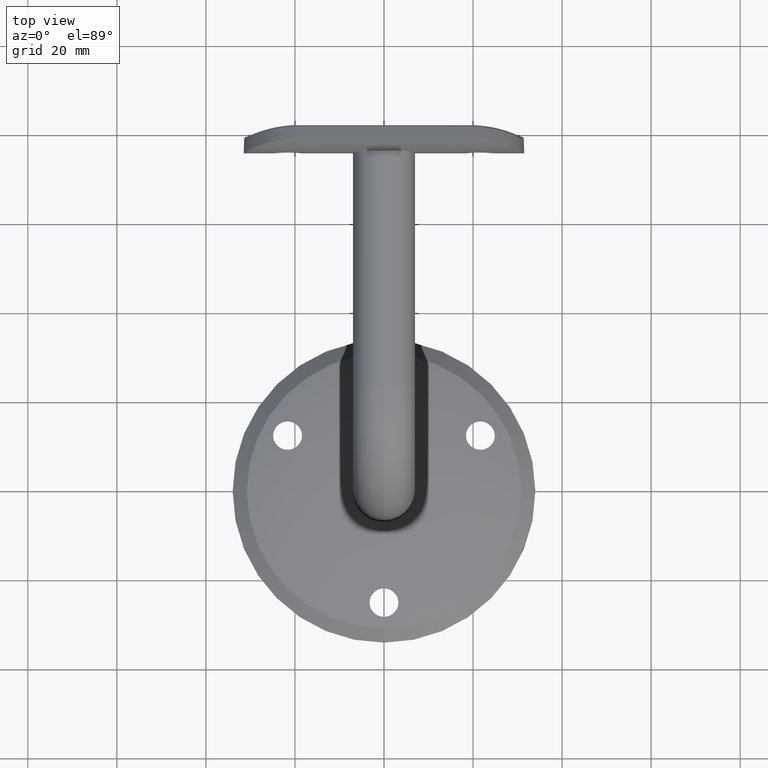
[diagram: clean part render]
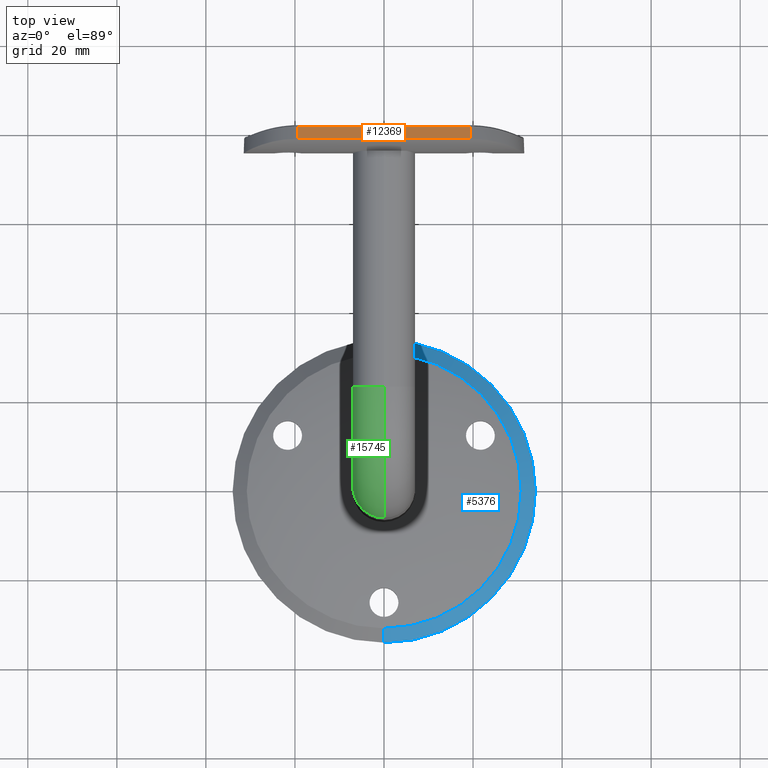
[diagram: same view with three faces highlighted in distinct colors, each labeled with its STEP entity id]
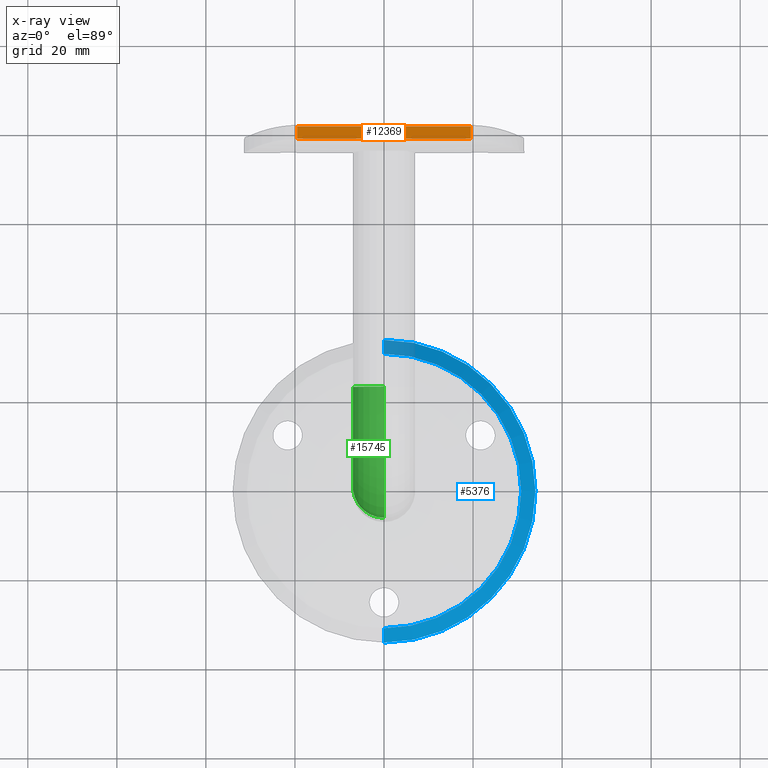
[diagram: x-ray of the same camera — body ghosted, the three highlighted faces saturated]
A machine part, top view with three faces highlighted in distinct colors.
The next image is the same camera in x-ray (body ghosted, the three faces saturated) — at least one of them is partly hidden behind the body in this view.
Their STEP definitions:

[orange] entity #12369 — the highlighted planar face has unit normal (-0, 0.4819, 0.8762).
#197 = VERTEX_POINT ( 'NONE', #11163 ) ;
#500 = CARTESIAN_POINT ( 'NONE',  ( -11.99999999999999645, -0.6176534026920421638, 31.50000000000000000 ) ) ;
#776 = DIRECTION ( 'NONE',  ( -2.169367489357782465E-30, -8.474091755303465534E-33, -1.000000000000000000 ) ) ;
#1303 = CARTESIAN_POINT ( 'NONE',  ( -12.00000000000001066, -0.6176534026920421638, 19.50000000000000000 ) ) ;
#1567 = LINE ( 'NONE', #16659, #10601 ) ;
#2081 = VECTOR ( 'NONE', #7680, 1000.000000000000000 ) ;
#2759 = VECTOR ( 'NONE', #776, 1000.000000000000000 ) ;
#3168 = LINE ( 'NONE', #6050, #2759 ) ;
#3566 = CARTESIAN_POINT ( 'NONE',  ( -12.00000000000001066, -0.6176534026920421638, 19.50000000000000000 ) ) ;
#3944 = FACE_OUTER_BOUND ( 'NONE', #15509, .T. ) ;
#5047 = CARTESIAN_POINT ( 'NONE',  ( -11.99999999999998224, -0.6176534026920560416, -19.50000000000000000 ) ) ;
#5963 = DIRECTION ( 'NONE',  ( 0.4819277108433736023, 0.8762109800277931848, 1.084683744678891232E-30 ) ) ;
#6050 = CARTESIAN_POINT ( 'NONE',  ( -11.99999999999999645, -0.6176534026920421638, 31.50000000000000000 ) ) ;
#6105 = ORIENTED_EDGE ( 'NONE', *, *, #10421, .F. ) ;
#6493 = VECTOR ( 'NONE', #5963, 1000.000000000000000 ) ;
#6771 = EDGE_CURVE ( 'NONE', #13299, #10240, #9885, .T. ) ;
#6948 = DIRECTION ( 'NONE',  ( -0.8762109800277931848, 0.4819277108433736023, -2.169367489357782115E-30 ) ) ;
#7624 = PLANE ( 'NONE',  #11671 ) ;
#7680 = DIRECTION ( 'NONE',  ( -0.4819277108433736023, -0.8762109800277931848, -1.084683744678891232E-30 ) ) ;
#8076 = ORIENTED_EDGE ( 'NONE', *, *, #9637, .T. ) ;
#8255 = CARTESIAN_POINT ( 'NONE',  ( -10.45505487545769796, 2.191269701761547228, 19.50000000000000000 ) ) ;
#8306 = CARTESIAN_POINT ( 'NONE',  ( -10.45505487545766954, 2.191269701761547228, -19.50000000000000000 ) ) ;
#9356 = DIRECTION ( 'NONE',  ( -0.4819277108433736023, -0.8762109800277931848, -1.084683744678891232E-30 ) ) ;
#9637 = EDGE_CURVE ( 'NONE', #10240, #13438, #1567, .T. ) ;
#9865 = ORIENTED_EDGE ( 'NONE', *, *, #6771, .T. ) ;
#9885 = LINE ( 'NONE', #3566, #6493 ) ;
#10240 = VERTEX_POINT ( 'NONE', #8255 ) ;
#10297 = DIRECTION ( 'NONE',  ( -2.169367489357782465E-30, -8.474091755303465534E-33, -1.000000000000000000 ) ) ;
#10421 = EDGE_CURVE ( 'NONE', #13299, #197, #3168, .T. ) ;
#10601 = VECTOR ( 'NONE', #10297, 1000.000000000000000 ) ;
#11163 = CARTESIAN_POINT ( 'NONE',  ( -11.99999999999998224, -0.6176534026920560416, -19.50000000000000355 ) ) ;
#11671 = AXIS2_PLACEMENT_3D ( 'NONE', #500, #6948, #9356 ) ;
#12135 = LINE ( 'NONE', #5047, #2081 ) ;
#12369 = ADVANCED_FACE ( 'NONE', ( #3944 ), #7624, .T. ) ;
#13299 = VERTEX_POINT ( 'NONE', #1303 ) ;
#13438 = VERTEX_POINT ( 'NONE', #8306 ) ;
#13651 = EDGE_CURVE ( 'NONE', #13438, #197, #12135, .T. ) ;
#14144 = ORIENTED_EDGE ( 'NONE', *, *, #13651, .T. ) ;
#15509 = EDGE_LOOP ( 'NONE', ( #9865, #8076, #14144, #6105 ) ) ;
#16659 = CARTESIAN_POINT ( 'NONE',  ( -10.45505487545768375, 2.191269701761547228, 31.50000000000000000 ) ) ;

[blue] entity #5376 — the highlighted conical surface has half-angle 49.03 deg.
#286 = CARTESIAN_POINT ( 'NONE',  ( 0.000000000000000000, 3.070234033247562611, -34.00000000000000000 ) ) ;
#360 = DIRECTION ( 'NONE',  ( 9.246773247622443815E-17, -0.6556599193418465310, 0.7550563357582289470 ) ) ;
#939 = DIRECTION ( 'NONE',  ( 0.000000000000000000, -1.000000000000000000, 0.000000000000000000 ) ) ;
#1704 = ORIENTED_EDGE ( 'NONE', *, *, #8422, .T. ) ;
#1838 = ORIENTED_EDGE ( 'NONE', *, *, #4383, .F. ) ;
#1855 = VERTEX_POINT ( 'NONE', #5450 ) ;
#2048 = CARTESIAN_POINT ( 'NONE',  ( 0.000000000000000000, 3.070234033247562611, 0.000000000000000000 ) ) ;
#2324 = VECTOR ( 'NONE', #2715, 999.9999999999998863 ) ;
#2551 = CARTESIAN_POINT ( 'NONE',  ( 0.000000000000000000, 3.070234033247562611, 0.000000000000000000 ) ) ;
#2687 = ORIENTED_EDGE ( 'NONE', *, *, #3081, .F. ) ;
#2715 = DIRECTION ( 'NONE',  ( 0.000000000000000000, -0.6556599193418465310, -0.7550563357582289470 ) ) ;
#2983 = CARTESIAN_POINT ( 'NONE',  ( 3.774247491956197357E-15, 5.832423396846378338, 30.81906958466698754 ) ) ;
#3081 = EDGE_CURVE ( 'NONE', #10669, #11638, #6333, .T. ) ;
#3732 = DIRECTION ( 'NONE',  ( 0.000000000000000000, -1.000000000000000000, 0.000000000000000000 ) ) ;
#4383 = EDGE_CURVE ( 'NONE', #11638, #1855, #5323, .T. ) ;
#4902 = CARTESIAN_POINT ( 'NONE',  ( 0.000000000000000000, 3.070234033247562611, -34.00000000000000000 ) ) ;
#5323 = CIRCLE ( 'NONE', #7749, 34.00000000000000000 ) ;
#5376 = ADVANCED_FACE ( 'NONE', ( #14166 ), #10735, .T. ) ;
#5450 = CARTESIAN_POINT ( 'NONE',  ( 4.163799117101000559E-15, 3.070234033247562611, 34.00000000000000000 ) ) ;
#5465 = ORIENTED_EDGE ( 'NONE', *, *, #5786, .T. ) ;
#5685 = CARTESIAN_POINT ( 'NONE',  ( 0.000000000000000000, 5.832423396846378338, 0.000000000000000000 ) ) ;
#5786 = EDGE_CURVE ( 'NONE', #10669, #12537, #11534, .T. ) ;
#5986 = DIRECTION ( 'NONE',  ( 0.000000000000000000, 0.000000000000000000, -1.000000000000000000 ) ) ;
#6333 = LINE ( 'NONE', #286, #2324 ) ;
#6919 = EDGE_LOOP ( 'NONE', ( #5465, #1704, #1838, #2687 ) ) ;
#6984 = AXIS2_PLACEMENT_3D ( 'NONE', #2551, #3732, #8821 ) ;
#7749 = AXIS2_PLACEMENT_3D ( 'NONE', #2048, #939, #5986 ) ;
#8422 = EDGE_CURVE ( 'NONE', #12537, #1855, #12826, .T. ) ;
#8821 = DIRECTION ( 'NONE',  ( 0.000000000000000000, 0.000000000000000000, -1.000000000000000000 ) ) ;
#9131 = CARTESIAN_POINT ( 'NONE',  ( 0.000000000000000000, 5.832423396846378338, -30.81906958466698754 ) ) ;
#9320 = DIRECTION ( 'NONE',  ( 0.000000000000000000, 0.000000000000000000, -1.000000000000000000 ) ) ;
#10669 = VERTEX_POINT ( 'NONE', #9131 ) ;
#10735 = CONICAL_SURFACE ( 'NONE', #6984, 34.00000000000000000, 0.8557400374771453322 ) ;
#11534 = CIRCLE ( 'NONE', #16455, 30.81906958466698043 ) ;
#11638 = VERTEX_POINT ( 'NONE', #4902 ) ;
#12537 = VERTEX_POINT ( 'NONE', #2983 ) ;
#12826 = LINE ( 'NONE', #13431, #15852 ) ;
#13431 = CARTESIAN_POINT ( 'NONE',  ( 4.163799117101000559E-15, 3.070234033247562611, 34.00000000000000000 ) ) ;
#14166 = FACE_OUTER_BOUND ( 'NONE', #6919, .T. ) ;
#15743 = DIRECTION ( 'NONE',  ( 0.000000000000000000, -1.000000000000000000, 0.000000000000000000 ) ) ;
#15852 = VECTOR ( 'NONE', #360, 999.9999999999998863 ) ;
#16455 = AXIS2_PLACEMENT_3D ( 'NONE', #5685, #15743, #9320 ) ;

[green] entity #15745 — the highlighted toroidal blend (fillet) surface has major radius 22 mm and minor (blend) radius 7 mm.
#766 = ORIENTED_EDGE ( 'NONE', *, *, #10370, .F. ) ;
#772 = AXIS2_PLACEMENT_3D ( 'NONE', #5850, #14959, #840 ) ;
#840 = DIRECTION ( 'NONE',  ( 0.000000000000000000, 0.000000000000000000, 1.000000000000000000 ) ) ;
#1054 = DIRECTION ( 'NONE',  ( 0.000000000000000000, 0.000000000000000000, 1.000000000000000000 ) ) ;
#1335 = VERTEX_POINT ( 'NONE', #5859 ) ;
#3484 = DIRECTION ( 'NONE',  ( 1.000000000000000000, 0.000000000000000000, 0.000000000000000000 ) ) ;
#3595 = CARTESIAN_POINT ( 'NONE',  ( 0.000000000000000000, -6.949885547581345981E-15, 53.00000000000000000 ) ) ;
#4833 = DIRECTION ( 'NONE',  ( -1.000000000000000000, -0.000000000000000000, 0.000000000000000000 ) ) ;
#5360 = CIRCLE ( 'NONE', #8097, 7.000000000000000888 ) ;
#5622 = ORIENTED_EDGE ( 'NONE', *, *, #7490, .T. ) ;
#5850 = CARTESIAN_POINT ( 'NONE',  ( 0.000000000000000000, 21.99999999999999289, 53.00000000000001421 ) ) ;
#5859 = CARTESIAN_POINT ( 'NONE',  ( 0.000000000000000000, 21.99999999999999289, 82.00000000000001421 ) ) ;
#6012 = VERTEX_POINT ( 'NONE', #12972 ) ;
#6342 = CARTESIAN_POINT ( 'NONE',  ( 8.572527594031474176E-16, 21.99999999999999289, 53.00000000000001421 ) ) ;
#6500 = CIRCLE ( 'NONE', #13382, 14.99999999999999289 ) ;
#6914 = CARTESIAN_POINT ( 'NONE',  ( 0.000000000000000000, 21.99999999999999289, 75.00000000000001421 ) ) ;
#7490 = EDGE_CURVE ( 'NONE', #6012, #1335, #16452, .T. ) ;
#7522 = DIRECTION ( 'NONE',  ( 0.000000000000000000, 0.000000000000000000, 1.000000000000000000 ) ) ;
#8097 = AXIS2_PLACEMENT_3D ( 'NONE', #6914, #15903, #8209 ) ;
#8107 = TOROIDAL_SURFACE ( 'NONE', #772, 22.00000000000000000, 7.000000000000000888 ) ;
#8209 = DIRECTION ( 'NONE',  ( 1.000000000000000000, 0.000000000000000000, 0.000000000000000000 ) ) ;
#8309 = EDGE_LOOP ( 'NONE', ( #12093, #5622, #766, #15754 ) ) ;
#9162 = AXIS2_PLACEMENT_3D ( 'NONE', #3595, #1054, #3484 ) ;
#9877 = FACE_OUTER_BOUND ( 'NONE', #8309, .T. ) ;
#10349 = CIRCLE ( 'NONE', #9162, 7.000000000000000888 ) ;
#10370 = EDGE_CURVE ( 'NONE', #13889, #1335, #5360, .T. ) ;
#11396 = DIRECTION ( 'NONE',  ( 0.000000000000000000, 0.000000000000000000, 1.000000000000000000 ) ) ;
#11651 = CARTESIAN_POINT ( 'NONE',  ( 8.572527594031467273E-16, 21.99999999999999289, 68.00000000000000000 ) ) ;
#11706 = CARTESIAN_POINT ( 'NONE',  ( 8.572527594031474176E-16, 6.999999999999993783, 53.00000000000000000 ) ) ;
#12093 = ORIENTED_EDGE ( 'NONE', *, *, #12141, .T. ) ;
#12141 = EDGE_CURVE ( 'NONE', #16483, #6012, #10349, .T. ) ;
#12574 = CARTESIAN_POINT ( 'NONE',  ( 0.000000000000000000, 21.99999999999999289, 53.00000000000001421 ) ) ;
#12919 = AXIS2_PLACEMENT_3D ( 'NONE', #12574, #4833, #11396 ) ;
#12972 = CARTESIAN_POINT ( 'NONE',  ( 0.000000000000000000, -7.000000000000007994, 53.00000000000000000 ) ) ;
#13382 = AXIS2_PLACEMENT_3D ( 'NONE', #6342, #15243, #7522 ) ;
#13889 = VERTEX_POINT ( 'NONE', #11651 ) ;
#14387 = EDGE_CURVE ( 'NONE', #16483, #13889, #6500, .T. ) ;
#14959 = DIRECTION ( 'NONE',  ( -1.000000000000000000, -0.000000000000000000, 0.000000000000000000 ) ) ;
#15243 = DIRECTION ( 'NONE',  ( -1.000000000000000000, -0.000000000000000000, 0.000000000000000000 ) ) ;
#15745 = ADVANCED_FACE ( 'NONE', ( #9877 ), #8107, .T. ) ;
#15754 = ORIENTED_EDGE ( 'NONE', *, *, #14387, .F. ) ;
#15903 = DIRECTION ( 'NONE',  ( 0.000000000000000000, 1.000000000000000000, -1.311299159921008727E-16 ) ) ;
#16452 = CIRCLE ( 'NONE', #12919, 29.00000000000000355 ) ;
#16483 = VERTEX_POINT ( 'NONE', #11706 ) ;